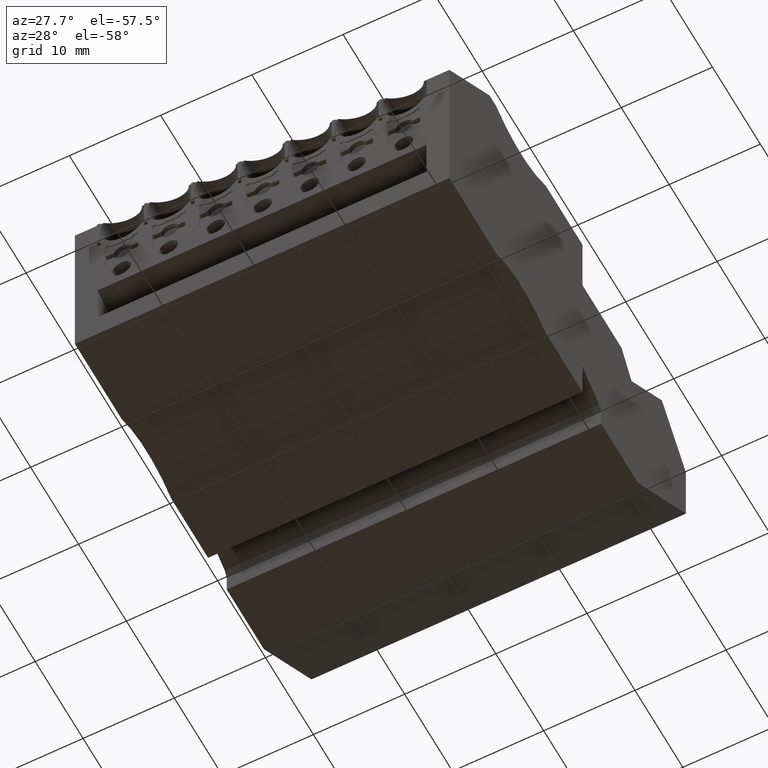
[diagram: clean part render]
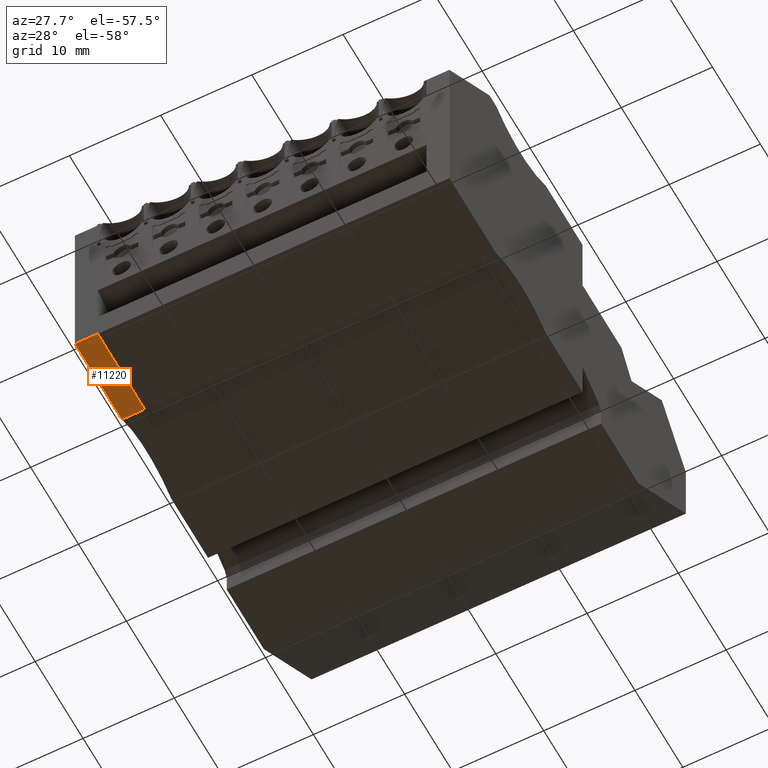
[diagram: same view with one face highlighted and labeled with its STEP entity id]
A machine part, auxiliary view. The second image highlights one B-rep face of the part: STEP entity #11220.
In plain terms, the highlighted planar face has unit normal (0, 0, -1).
Its self-contained STEP definition (entity closure, byte-faithful):
#9350=CARTESIAN_POINT('',(432.124069232021,670.934347625639,
68.1199999950703));
#9360=DIRECTION('',(-1.20456572490157E-9,-1.,5.82229711732946E-10));
#9370=DIRECTION('',(1.,-1.20456572494379E-9,-7.2511997674725E-11));
#9380=AXIS2_PLACEMENT_3D('',#9350,#9360,#9370);
#9390=PLANE('',#9380);
#9440=CARTESIAN_POINT('',(420.453158745119,670.934347639697,
68.1200000003877));
#9450=VERTEX_POINT('',#9440);
#9620=CARTESIAN_POINT('',(430.260883767571,670.934347627883,
68.1199999996107));
#9630=VERTEX_POINT('',#9620);
#9660=CARTESIAN_POINT('',(435.968902535754,670.934347621007,
68.1199999991585));
#9670=DIRECTION('',(-1.,1.20456572494379E-9,7.92260575924475E-11));
#9680=VECTOR('',#9670,1.);
#9690=LINE('',#9660,#9680);
#9700=EDGE_CURVE('',#9630,#9450,#9690,.T.);
#10780=ORIENTED_EDGE('',*,*,#9700,.T.);
#10790=CARTESIAN_POINT('',(435.425728131586,662.371381859996,
68.1200000035315));
#10800=DIRECTION('',(9.53020395643386E-11,5.69281445938362E-10,1.));
#10810=DIRECTION('',(1.,-1.20456367103121E-9,-9.53018157247533E-11));
#10820=AXIS2_PLACEMENT_3D('',#10790,#10800,#10810);
#10830=CYLINDRICAL_SURFACE('',#10820,10.);
#10840=CARTESIAN_POINT('',(430.260883771781,670.934347626427,
65.6200000012634));
#10850=CARTESIAN_POINT('',(430.260883771805,670.934347626549,
65.8283333344206));
#10860=CARTESIAN_POINT('',(430.26088377183,670.93434762667,
66.0366666675777));
#10870=CARTESIAN_POINT('',(430.260883771854,670.934347626791,
66.2450000007348));
#10880=CARTESIAN_POINT('',(430.260883771878,670.934347626913,
66.4533333338919));
#10890=CARTESIAN_POINT('',(430.260883771903,670.934347627034,
66.6616666670491));
#10900=CARTESIAN_POINT('',(430.260883771927,670.934347627155,
66.8700000002062));
#10910=CARTESIAN_POINT('',(430.260883771951,670.934347627276,
67.0783333333633));
#10920=CARTESIAN_POINT('',(430.260883771976,670.934347627398,
67.2866666665205));
#10930=CARTESIAN_POINT('',(430.260883772,670.934347627519,
67.4949999996776));
#10940=CARTESIAN_POINT('',(430.260883772012,670.93434762758,
67.5991666662562));
#10950=CARTESIAN_POINT('',(430.260883772024,670.93434762764,
67.7033333328347));
#10960=CARTESIAN_POINT('',(430.260883772036,670.934347627701,
67.8074999994133));
#10970=CARTESIAN_POINT('',(430.260883772048,670.934347627762,
67.9116666659918));
#10980=CARTESIAN_POINT('',(430.260883772061,670.934347627822,
68.0158333325704));
#10990=CARTESIAN_POINT('',(430.260883772073,670.934347627883,
68.119999999149));
#11000=B_SPLINE_CURVE_WITH_KNOTS('',3,(#10840,#10850,#10860,#10870,
#10880,#10890,#10900,#10910,#10920,#10930,#10940,#10950,#10960,#10970,
#10980,#10990),.UNSPECIFIED.,.F.,.F.,(4,3,3,3,3,4),(0.,0.62499999947137,
1.24999999894276,1.87499999841414,2.18749999814985,2.49999999788552),
.UNSPECIFIED.);
#11010=SURFACE_CURVE('',#11000,(#10830,#9390),.CURVE_3D.);
#11020=CARTESIAN_POINT('',(430.260883771781,670.934347626427,
65.6199999960708));
#11030=VERTEX_POINT('',#11020);
#11040=EDGE_CURVE('',#11030,#9630,#11010,.T.);
#11050=ORIENTED_EDGE('',*,*,#11040,.T.);
#11060=CARTESIAN_POINT('',(437.768902474305,670.934347617416,
65.6199999951893));
#11070=DIRECTION('',(1.,-1.20456622454417E-9,-1.17410331424629E-10));
#11080=VECTOR('',#11070,1.);
#11090=LINE('',#11060,#11080);
#11100=CARTESIAN_POINT('',(420.453158744921,670.934347638241,
65.6199999970832));
#11110=VERTEX_POINT('',#11100);
#11120=EDGE_CURVE('',#11110,#11030,#11090,.T.);
#11130=ORIENTED_EDGE('',*,*,#11120,.T.);
#11140=CARTESIAN_POINT('',(420.4531587696,670.934347819606,
377.119999962871));
#11150=DIRECTION('',(-7.92262462904928E-11,-5.82229711637513E-10,-1.));
#11160=VECTOR('',#11150,1.);
#11170=LINE('',#11140,#11160);
#11180=EDGE_CURVE('',#9450,#11110,#11170,.T.);
#11190=ORIENTED_EDGE('',*,*,#11180,.T.);
#11200=EDGE_LOOP('',(#11190,#11130,#11050,#10780));
#11210=FACE_OUTER_BOUND('',#11200,.T.);
#11220=ADVANCED_FACE('',(#11210),#9390,.T.);